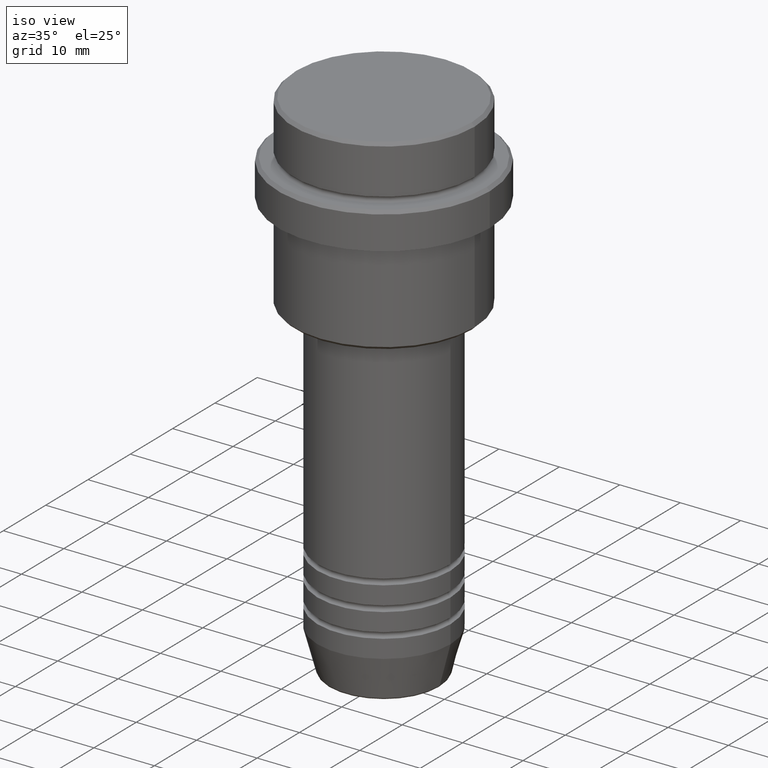
[diagram: clean part render]
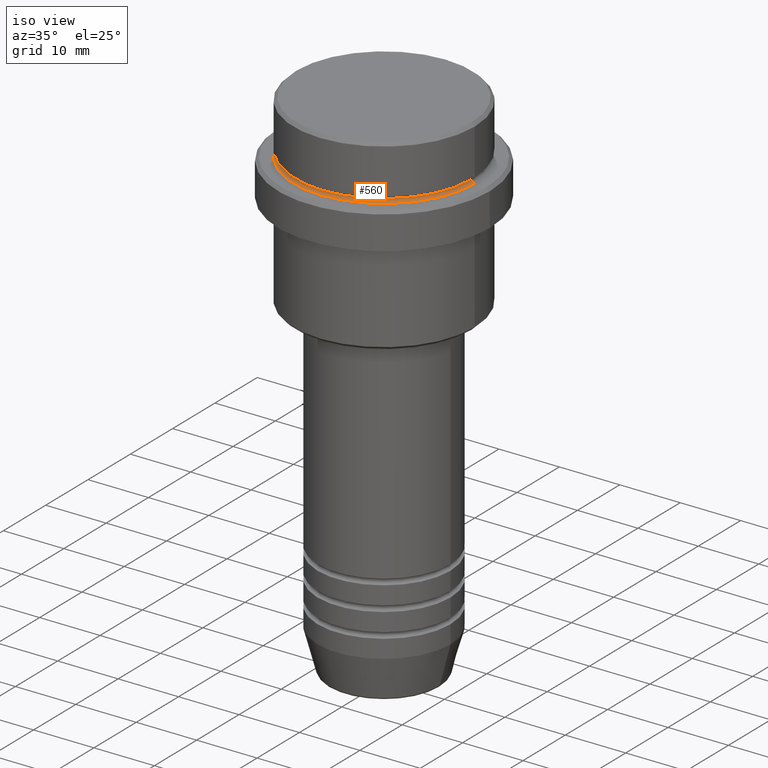
[diagram: same view with one face highlighted and labeled with its STEP entity id]
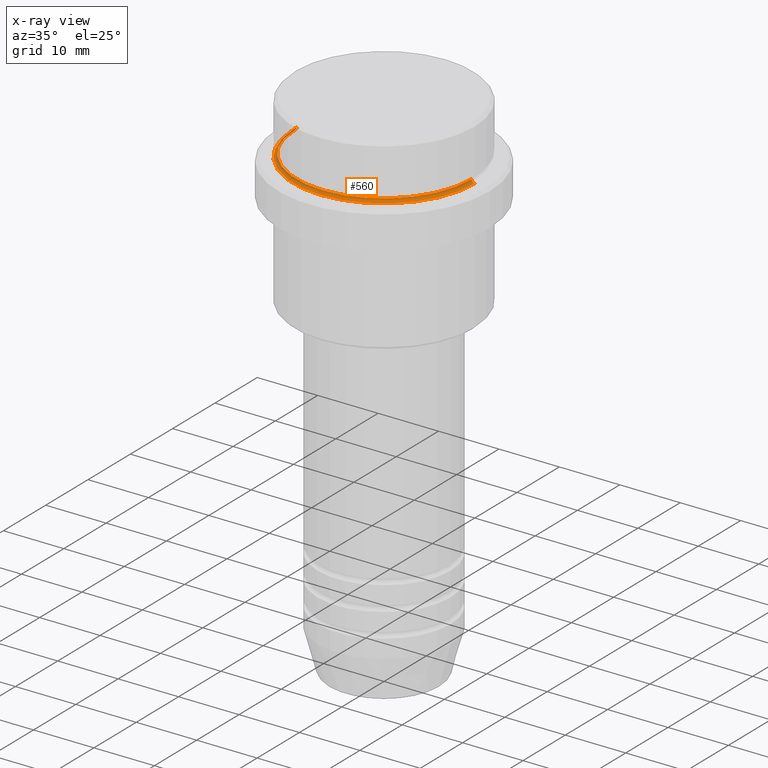
[diagram: x-ray of the same camera — body ghosted, the highlighted face saturated]
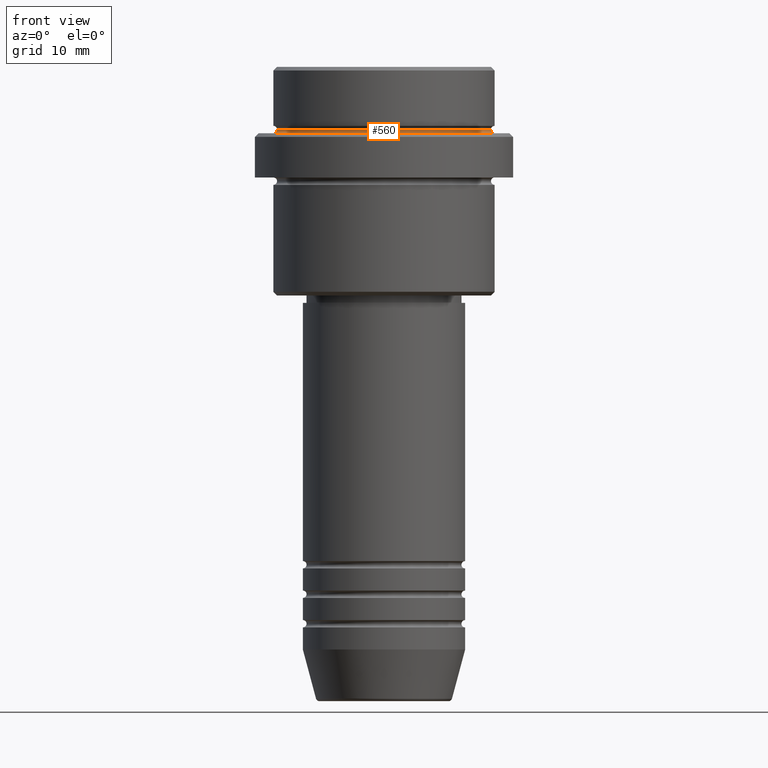
[diagram: same view with one face highlighted and labeled with its STEP entity id]
A machine part, iso view. The second image highlights one B-rep face of the part: STEP entity #560.
The next image is the same camera in x-ray: the body ghosted, the highlighted face saturated — about 2% of this face is hidden behind the body in this view.
A second angle (front view) of the same face is appended — the face is thin or edge-on in the first view.
In plain terms, the highlighted toroidal blend (fillet) surface has major radius 15 mm and minor (blend) radius 0.5 mm.
Its self-contained STEP definition (entity closure, byte-faithful):
#14 = EDGE_CURVE ( 'NONE', #474, #1068, #679, .T. ) ;
#32 = CARTESIAN_POINT ( 'NONE',  ( 14.99999999999999289, 0.000000000000000000, -9.000000000000000000 ) ) ;
#97 = CARTESIAN_POINT ( 'NONE',  ( 0.000000000000000000, 0.000000000000000000, -9.000000000000000000 ) ) ;
#202 = DIRECTION ( 'NONE',  ( -0.000000000000000000, -0.000000000000000000, 1.000000000000000000 ) ) ;
#284 = DIRECTION ( 'NONE',  ( -1.000000000000000000, 1.224646799147349509E-16, 0.000000000000000000 ) ) ;
#320 = CIRCLE ( 'NONE', #1354, 14.49999999999999289 ) ;
#325 = CARTESIAN_POINT ( 'NONE',  ( 0.000000000000000000, 0.000000000000000000, -8.499999999999998224 ) ) ;
#339 = AXIS2_PLACEMENT_3D ( 'NONE', #1272, #1252, #284 ) ;
#415 = DIRECTION ( 'NONE',  ( 1.000000000000000000, 0.000000000000000000, 0.000000000000000000 ) ) ;
#463 = DIRECTION ( 'NONE',  ( 1.000000000000000000, 0.000000000000000000, 0.000000000000000000 ) ) ;
#474 = VERTEX_POINT ( 'NONE', #489 ) ;
#489 = CARTESIAN_POINT ( 'NONE',  ( 14.49999999999999289, 0.000000000000000000, -8.499999999999998224 ) ) ;
#519 = DIRECTION ( 'NONE',  ( 0.000000000000000000, -1.000000000000000000, 0.000000000000000000 ) ) ;
#538 = EDGE_CURVE ( 'NONE', #832, #474, #320, .T. ) ;
#539 = CARTESIAN_POINT ( 'NONE',  ( -14.49999999999999289, 1.806354028742345013E-15, -8.499999999999998224 ) ) ;
#550 = DIRECTION ( 'NONE',  ( 0.000000000000000000, 0.000000000000000000, -1.000000000000000000 ) ) ;
#560 = ADVANCED_FACE ( 'NONE', ( #1306 ), #1204, .F. ) ;
#587 = EDGE_CURVE ( 'NONE', #1068, #905, #1397, .T. ) ;
#591 = CIRCLE ( 'NONE', #339, 0.5000000000000004441 ) ;
#649 = ORIENTED_EDGE ( 'NONE', *, *, #1133, .T. ) ;
#679 = CIRCLE ( 'NONE', #1147, 0.5000000000000004441 ) ;
#753 = ORIENTED_EDGE ( 'NONE', *, *, #587, .F. ) ;
#755 = DIRECTION ( 'NONE',  ( -0.000000000000000000, -0.000000000000000000, 1.000000000000000000 ) ) ;
#778 = EDGE_LOOP ( 'NONE', ( #1290, #649, #753, #1182 ) ) ;
#812 = CARTESIAN_POINT ( 'NONE',  ( -14.99999999999999289, 1.836970198721028800E-15, -9.000000000000000000 ) ) ;
#832 = VERTEX_POINT ( 'NONE', #539 ) ;
#873 = DIRECTION ( 'NONE',  ( 0.000000000000000000, 0.000000000000000000, -1.000000000000000000 ) ) ;
#905 = VERTEX_POINT ( 'NONE', #812 ) ;
#1068 = VERTEX_POINT ( 'NONE', #32 ) ;
#1133 = EDGE_CURVE ( 'NONE', #832, #905, #591, .T. ) ;
#1147 = AXIS2_PLACEMENT_3D ( 'NONE', #1153, #519, #873 ) ;
#1153 = CARTESIAN_POINT ( 'NONE',  ( 14.99999999999999289, 0.000000000000000000, -8.499999999999998224 ) ) ;
#1182 = ORIENTED_EDGE ( 'NONE', *, *, #14, .F. ) ;
#1204 = TOROIDAL_SURFACE ( 'NONE', #1303, 14.99999999999999289, 0.5000000000000000000 ) ;
#1239 = AXIS2_PLACEMENT_3D ( 'NONE', #97, #550, #1409 ) ;
#1252 = DIRECTION ( 'NONE',  ( 1.224646799147353207E-16, 1.000000000000000000, 0.000000000000000000 ) ) ;
#1272 = CARTESIAN_POINT ( 'NONE',  ( -14.99999999999999289, 1.836970198721028800E-15, -8.499999999999998224 ) ) ;
#1290 = ORIENTED_EDGE ( 'NONE', *, *, #538, .F. ) ;
#1303 = AXIS2_PLACEMENT_3D ( 'NONE', #325, #755, #463 ) ;
#1306 = FACE_OUTER_BOUND ( 'NONE', #778, .T. ) ;
#1354 = AXIS2_PLACEMENT_3D ( 'NONE', #1375, #202, #415 ) ;
#1375 = CARTESIAN_POINT ( 'NONE',  ( 0.000000000000000000, 0.000000000000000000, -8.499999999999998224 ) ) ;
#1397 = CIRCLE ( 'NONE', #1239, 14.99999999999999289 ) ;
#1409 = DIRECTION ( 'NONE',  ( 1.000000000000000000, 0.000000000000000000, 0.000000000000000000 ) ) ;